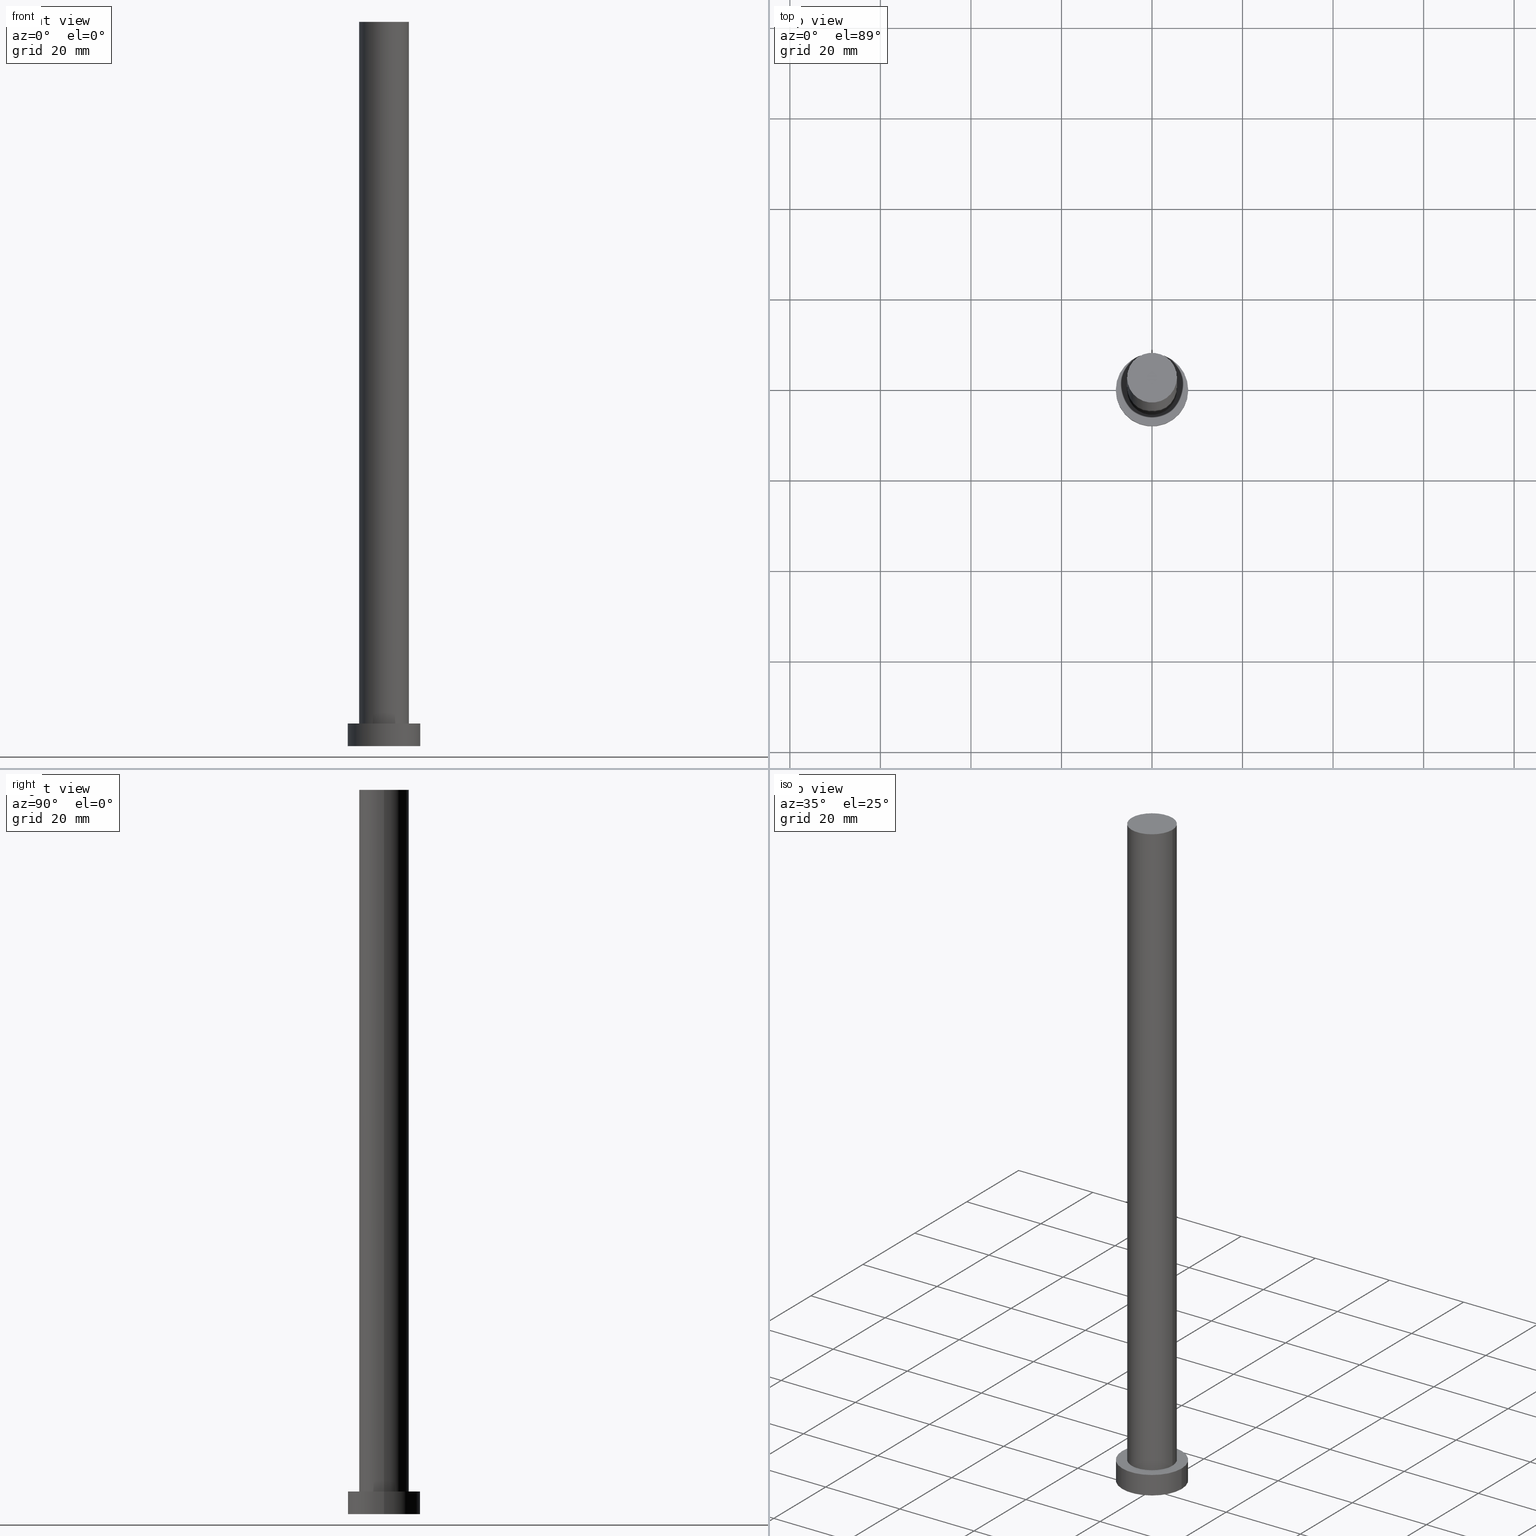
[diagram: canonical four-view strip — front | top / right | iso, engineering-drawing reading convention]
A machine part, canonical four-view strip (front | top / right | iso — engineering-drawing reading convention). The complete STEP part file that produces these views, byte-faithful:
ISO-10303-21;
HEADER;
FILE_DESCRIPTION (( 'STEP AP203' ),
    '1' );
FILE_NAME ('93b0.STEP',
    '2023-02-13T13:11:46',
    ( '' ),
    ( '' ),
    'SwSTEP 2.0',
    'SolidWorks 2019',
    '' );
FILE_SCHEMA (( 'CONFIG_CONTROL_DESIGN' ));
ENDSEC;

DATA;
#1 = VECTOR ( 'NONE', #64, 1000.000000000000000 ) ;
#2 = CARTESIAN_POINT ( 'NONE',  ( 0.000000000000000000, 0.000000000000000000, 160.0000000000000000 ) ) ;
#3 = ADVANCED_FACE ( 'NONE', ( #169 ), #88, .T. ) ;
#4 = DIRECTION ( 'NONE',  ( -0.000000000000000000, -0.000000000000000000, -1.000000000000000000 ) ) ;
#5 = CYLINDRICAL_SURFACE ( 'NONE', #35, 5.500000000000000000 ) ;
#6 = PERSON_AND_ORGANIZATION_ROLE ( 'design_owner' ) ;
#7 = APPROVAL ( #212, 'NEUR�EN�' ) ;
#8 =( NAMED_UNIT ( * ) SI_UNIT ( $, .STERADIAN. ) SOLID_ANGLE_UNIT ( ) );
#9 = UNCERTAINTY_MEASURE_WITH_UNIT (LENGTH_MEASURE( 1.000000000000000082E-05 ), #66, 'distance_accuracy_value', 'NONE');
#10 = APPLICATION_CONTEXT ( 'configuration controlled 3d designs of mechanical parts and assemblies' ) ;
#11 = ORIENTED_EDGE ( 'NONE', *, *, #247, .F. ) ;
#12 = ORIENTED_EDGE ( 'NONE', *, *, #101, .T. ) ;
#13 = ADVANCED_FACE ( 'NONE', ( #50 ), #232, .T. ) ;
#14 = PERSON_AND_ORGANIZATION ( #174, #65 ) ;
#15 = VERTEX_POINT ( 'NONE', #219 ) ;
#16 = AXIS2_PLACEMENT_3D ( 'NONE', #72, #227, #76 ) ;
#17 = EDGE_LOOP ( 'NONE', ( #193, #122, #112, #94 ) ) ;
#18 = APPROVAL ( #69, 'NEUR�EN�' ) ;
#19 = PLANE ( 'NONE',  #204 ) ;
#20 = DIRECTION ( 'NONE',  ( 1.000000000000000000, 0.000000000000000000, 0.000000000000000000 ) ) ;
#21 = DIRECTION ( 'NONE',  ( 1.000000000000000000, 0.000000000000000000, 0.000000000000000000 ) ) ;
#22 = EDGE_CURVE ( 'NONE', #250, #15, #138, .T. ) ;
#23 = LINE ( 'NONE', #116, #147 ) ;
#24 = CARTESIAN_POINT ( 'NONE',  ( 0.000000000000000000, 0.000000000000000000, 0.000000000000000000 ) ) ;
#25 = CC_DESIGN_SECURITY_CLASSIFICATION ( #180, ( #130 ) ) ;
#26 = ADVANCED_FACE ( 'NONE', ( #196 ), #47, .F. ) ;
#27 = DIRECTION ( 'NONE',  ( 1.000000000000000000, 0.000000000000000000, 0.000000000000000000 ) ) ;
#28 = CIRCLE ( 'NONE', #96, 5.500000000000000000 ) ;
#29 = MECHANICAL_CONTEXT ( 'NONE', #107, 'mechanical' ) ;
#30 = ORIENTED_EDGE ( 'NONE', *, *, #22, .F. ) ;
#31 = CALENDAR_DATE ( 2023, 13, 2 ) ;
#32 = VERTEX_POINT ( 'NONE', #129 ) ;
#33 = DATE_TIME_ROLE ( 'classification_date' ) ;
#34 = ORIENTED_EDGE ( 'NONE', *, *, #137, .F. ) ;
#35 = AXIS2_PLACEMENT_3D ( 'NONE', #81, #195, #128 ) ;
#36 = VERTEX_POINT ( 'NONE', #100 ) ;
#37 = PERSON_AND_ORGANIZATION_ROLE ( 'design_supplier' ) ;
#38 = ORIENTED_EDGE ( 'NONE', *, *, #22, .T. ) ;
#39 = APPROVAL_DATE_TIME ( #139, #104 ) ;
#40 = FACE_BOUND ( 'NONE', #167, .T. ) ;
#41 = APPROVAL_PERSON_ORGANIZATION ( #84, #18, #119 ) ;
#42 = DIRECTION ( 'NONE',  ( 0.000000000000000000, 0.000000000000000000, 1.000000000000000000 ) ) ;
#43 = DIRECTION ( 'NONE',  ( 0.000000000000000000, 0.000000000000000000, 1.000000000000000000 ) ) ;
#44 = ADVANCED_FACE ( 'NONE', ( #254 ), #235, .T. ) ;
#45 = PLANE ( 'NONE',  #98 ) ;
#46 = CIRCLE ( 'NONE', #222, 8.000000000000000000 ) ;
#47 = PLANE ( 'NONE',  #178 ) ;
#48 = DIRECTION ( 'NONE',  ( 1.000000000000000000, 0.000000000000000000, 0.000000000000000000 ) ) ;
#49 = APPROVAL_DATE_TIME ( #226, #7 ) ;
#50 = FACE_OUTER_BOUND ( 'NONE', #17, .T. ) ;
#51 = EDGE_CURVE ( 'NONE', #32, #75, #70, .T. ) ;
#52 = ORIENTED_EDGE ( 'NONE', *, *, #236, .T. ) ;
#53 = DATE_AND_TIME ( #213, #136 ) ;
#54 = AXIS2_PLACEMENT_3D ( 'NONE', #24, #216, #20 ) ;
#55 = ORIENTED_EDGE ( 'NONE', *, *, #120, .T. ) ;
#56 = AXIS2_PLACEMENT_3D ( 'NONE', #207, #203, #48 ) ;
#57 = PERSON_AND_ORGANIZATION ( #174, #65 ) ;
#58 = CARTESIAN_POINT ( 'NONE',  ( 0.000000000000000000, 0.000000000000000000, 160.0000000000000000 ) ) ;
#59 = DATE_AND_TIME ( #168, #61 ) ;
#60 = DIRECTION ( 'NONE',  ( 1.000000000000000000, 0.000000000000000000, -0.000000000000000000 ) ) ;
#61 = LOCAL_TIME ( 14, 11, 46.00000000000000000, #92 ) ;
#62 = DIRECTION ( 'NONE',  ( 1.000000000000000000, 0.000000000000000000, 0.000000000000000000 ) ) ;
#63 = DIRECTION ( 'NONE',  ( 0.000000000000000000, 0.000000000000000000, 1.000000000000000000 ) ) ;
#64 = DIRECTION ( 'NONE',  ( -0.000000000000000000, -0.000000000000000000, -1.000000000000000000 ) ) ;
#65 = ORGANIZATION ( 'NEUR�EN�', 'NEUR�EN�', '' ) ;
#66 =( LENGTH_UNIT ( ) NAMED_UNIT ( * ) SI_UNIT ( .MILLI., .METRE. ) );
#67 = EDGE_CURVE ( 'NONE', #188, #97, #106, .T. ) ;
#68 = DIRECTION ( 'NONE',  ( 0.000000000000000000, 0.000000000000000000, 1.000000000000000000 ) ) ;
#69 = APPROVAL_STATUS ( 'not_yet_approved' ) ;
#70 = CIRCLE ( 'NONE', #243, 5.500000000000000000 ) ;
#71 = CARTESIAN_POINT ( 'NONE',  ( -5.500000000000000000, 0.000000000000000000, 160.0000000000000000 ) ) ;
#72 = CARTESIAN_POINT ( 'NONE',  ( 0.000000000000000000, 0.000000000000000000, 5.000000000000000000 ) ) ;
#73 = DESIGN_CONTEXT ( 'detailed design', #10, 'design' ) ;
#74 = APPROVAL_STATUS ( 'not_yet_approved' ) ;
#75 = VERTEX_POINT ( 'NONE', #179 ) ;
#76 = DIRECTION ( 'NONE',  ( -1.000000000000000000, 0.000000000000000000, 0.000000000000000000 ) ) ;
#77 = DIRECTION ( 'NONE',  ( 0.000000000000000000, 0.000000000000000000, 1.000000000000000000 ) ) ;
#78 = DIRECTION ( 'NONE',  ( 0.000000000000000000, 0.000000000000000000, 1.000000000000000000 ) ) ;
#79 = DIRECTION ( 'NONE',  ( -0.000000000000000000, -0.000000000000000000, -1.000000000000000000 ) ) ;
#80 = DIRECTION ( 'NONE',  ( 0.000000000000000000, 0.000000000000000000, 1.000000000000000000 ) ) ;
#81 = CARTESIAN_POINT ( 'NONE',  ( 0.000000000000000000, 0.000000000000000000, 160.0000000000000000 ) ) ;
#82 = EDGE_CURVE ( 'NONE', #36, #140, #199, .T. ) ;
#83 = AXIS2_PLACEMENT_3D ( 'NONE', #164, #68, #27 ) ;
#84 = PERSON_AND_ORGANIZATION ( #174, #65 ) ;
#85 = LINE ( 'NONE', #161, #102 ) ;
#86 = APPLICATION_PROTOCOL_DEFINITION ( 'international standard', 'config_control_design', 1994, #10 ) ;
#87 = CIRCLE ( 'NONE', #83, 5.500000000000000000 ) ;
#88 = CYLINDRICAL_SURFACE ( 'NONE', #16, 8.000000000000000000 ) ;
#89 = CC_DESIGN_DATE_AND_TIME_ASSIGNMENT ( #59, #33, ( #180 ) ) ;
#90 = EDGE_LOOP ( 'NONE', ( #93, #108, #121, #248 ) ) ;
#91 = CC_DESIGN_APPROVAL ( #18, ( #184 ) ) ;
#92 = COORDINATED_UNIVERSAL_TIME_OFFSET ( 1, 0, .AHEAD. ) ;
#93 = ORIENTED_EDGE ( 'NONE', *, *, #114, .F. ) ;
#94 = ORIENTED_EDGE ( 'NONE', *, *, #247, .T. ) ;
#95 = SECURITY_CLASSIFICATION_LEVEL ( 'unclassified' ) ;
#96 = AXIS2_PLACEMENT_3D ( 'NONE', #2, #200, #21 ) ;
#97 = VERTEX_POINT ( 'NONE', #156 ) ;
#98 = AXIS2_PLACEMENT_3D ( 'NONE', #134, #80, #60 ) ;
#99 = DIRECTION ( 'NONE',  ( -1.000000000000000000, 0.000000000000000000, 0.000000000000000000 ) ) ;
#100 = CARTESIAN_POINT ( 'NONE',  ( 5.500000000000000000, 6.735557395310442023E-16, 5.000000000000000000 ) ) ;
#101 = EDGE_CURVE ( 'NONE', #97, #188, #145, .T. ) ;
#102 = VECTOR ( 'NONE', #205, 1000.000000000000000 ) ;
#103 = CARTESIAN_POINT ( 'NONE',  ( 0.000000000000000000, 0.000000000000000000, 5.000000000000000000 ) ) ;
#104 = APPROVAL ( #74, 'NEUR�EN�' ) ;
#105 = CARTESIAN_POINT ( 'NONE',  ( 0.000000000000000000, 0.000000000000000000, 160.0000000000000000 ) ) ;
#106 = CIRCLE ( 'NONE', #124, 8.000000000000000000 ) ;
#107 = APPLICATION_CONTEXT ( 'configuration controlled 3d designs of mechanical parts and assemblies' ) ;
#108 = ORIENTED_EDGE ( 'NONE', *, *, #172, .T. ) ;
#109 = DATE_AND_TIME ( #228, #208 ) ;
#110 = CC_DESIGN_PERSON_AND_ORGANIZATION_ASSIGNMENT ( #149, #173, ( #184 ) ) ;
#111 = PERSON_AND_ORGANIZATION_ROLE ( 'classification_officer' ) ;
#112 = ORIENTED_EDGE ( 'NONE', *, *, #223, .T. ) ;
#113 = FACE_OUTER_BOUND ( 'NONE', #144, .T. ) ;
#114 = EDGE_CURVE ( 'NONE', #75, #32, #28, .T. ) ;
#115 = CARTESIAN_POINT ( 'NONE',  ( 0.000000000000000000, 0.000000000000000000, 5.000000000000000000 ) ) ;
#116 = CARTESIAN_POINT ( 'NONE',  ( -8.000000000000000000, 0.000000000000000000, 5.000000000000000000 ) ) ;
#117 = CARTESIAN_POINT ( 'NONE',  ( 0.000000000000000000, 0.000000000000000000, 0.000000000000000000 ) ) ;
#118 = VECTOR ( 'NONE', #160, 1000.000000000000000 ) ;
#119 = APPROVAL_ROLE ( '' ) ;
#120 = EDGE_CURVE ( 'NONE', #97, #15, #23, .T. ) ;
#121 = ORIENTED_EDGE ( 'NONE', *, *, #82, .T. ) ;
#122 = ORIENTED_EDGE ( 'NONE', *, *, #51, .F. ) ;
#123 = MANIFOLD_SOLID_BREP ( 'P�idat vysunut�m3', #255 ) ;
#124 = AXIS2_PLACEMENT_3D ( 'NONE', #115, #78, #152 ) ;
#125 = CALENDAR_DATE ( 2023, 13, 2 ) ;
#126 = EDGE_LOOP ( 'NONE', ( #209, #210 ) ) ;
#127 = ORIENTED_EDGE ( 'NONE', *, *, #120, .F. ) ;
#128 = DIRECTION ( 'NONE',  ( -1.000000000000000000, 0.000000000000000000, 0.000000000000000000 ) ) ;
#129 = CARTESIAN_POINT ( 'NONE',  ( -5.500000000000000000, 0.000000000000000000, 160.0000000000000000 ) ) ;
#130 = PRODUCT_DEFINITION_FORMATION_WITH_SPECIFIED_SOURCE ( 'LIBOVOLN�', '', #225, .NOT_KNOWN. ) ;
#131 = DIRECTION ( 'NONE',  ( -1.000000000000000000, 0.000000000000000000, 0.000000000000000000 ) ) ;
#132 = FACE_OUTER_BOUND ( 'NONE', #126, .T. ) ;
#133 = AXIS2_PLACEMENT_3D ( 'NONE', #238, #218, #201 ) ;
#134 = CARTESIAN_POINT ( 'NONE',  ( 0.000000000000000000, 0.000000000000000000, 160.0000000000000000 ) ) ;
#135 = CC_DESIGN_PERSON_AND_ORGANIZATION_ASSIGNMENT ( #57, #245, ( #130 ) ) ;
#136 = LOCAL_TIME ( 14, 11, 46.00000000000000000, #231 ) ;
#137 = EDGE_CURVE ( 'NONE', #15, #250, #46, .T. ) ;
#138 = CIRCLE ( 'NONE', #54, 8.000000000000000000 ) ;
#139 = DATE_AND_TIME ( #125, #244 ) ;
#140 = VERTEX_POINT ( 'NONE', #241 ) ;
#141 = PERSON_AND_ORGANIZATION ( #174, #65 ) ;
#142 = EDGE_LOOP ( 'NONE', ( #234, #52, #38, #127 ) ) ;
#143 = APPROVAL_ROLE ( '' ) ;
#144 = EDGE_LOOP ( 'NONE', ( #12, #214 ) ) ;
#145 = CIRCLE ( 'NONE', #133, 8.000000000000000000 ) ;
#146 = SHAPE_DEFINITION_REPRESENTATION ( #202, #162 ) ;
#147 = VECTOR ( 'NONE', #79, 1000.000000000000000 ) ;
#148 = ORIENTED_EDGE ( 'NONE', *, *, #82, .F. ) ;
#149 = PERSON_AND_ORGANIZATION ( #174, #65 ) ;
#150 = ORIENTED_EDGE ( 'NONE', *, *, #236, .F. ) ;
#151 = DIRECTION ( 'NONE',  ( 1.000000000000000000, 0.000000000000000000, -0.000000000000000000 ) ) ;
#152 = DIRECTION ( 'NONE',  ( 1.000000000000000000, 0.000000000000000000, 0.000000000000000000 ) ) ;
#153 = APPROVAL_PERSON_ORGANIZATION ( #141, #104, #143 ) ;
#154 = LOCAL_TIME ( 14, 11, 46.00000000000000000, #246 ) ;
#155 = ADVANCED_FACE ( 'NONE', ( #132 ), #45, .T. ) ;
#156 = CARTESIAN_POINT ( 'NONE',  ( -8.000000000000000000, 0.000000000000000000, 5.000000000000000000 ) ) ;
#157 = CARTESIAN_POINT ( 'NONE',  ( 5.500000000000000000, 6.735557395310442023E-16, 160.0000000000000000 ) ) ;
#158 = AXIS2_PLACEMENT_3D ( 'NONE', #58, #159, #99 ) ;
#159 = DIRECTION ( 'NONE',  ( -0.000000000000000000, -0.000000000000000000, -1.000000000000000000 ) ) ;
#160 = DIRECTION ( 'NONE',  ( -0.000000000000000000, -0.000000000000000000, -1.000000000000000000 ) ) ;
#161 = CARTESIAN_POINT ( 'NONE',  ( 8.000000000000000000, 9.797174393178825657E-16, 5.000000000000000000 ) ) ;
#162 = ADVANCED_BREP_SHAPE_REPRESENTATION ( '93b0', ( #123, #56 ), #194 ) ;
#163 = CC_DESIGN_PERSON_AND_ORGANIZATION_ASSIGNMENT ( #183, #6, ( #225 ) ) ;
#164 = CARTESIAN_POINT ( 'NONE',  ( 0.000000000000000000, 0.000000000000000000, 5.000000000000000000 ) ) ;
#165 = EDGE_LOOP ( 'NONE', ( #34, #30 ) ) ;
#166 = CC_DESIGN_APPROVAL ( #104, ( #130 ) ) ;
#167 = EDGE_LOOP ( 'NONE', ( #11, #148 ) ) ;
#168 = CALENDAR_DATE ( 2023, 13, 2 ) ;
#169 = FACE_OUTER_BOUND ( 'NONE', #170, .T. ) ;
#170 = EDGE_LOOP ( 'NONE', ( #150, #229, #55, #211 ) ) ;
#171 = COORDINATED_UNIVERSAL_TIME_OFFSET ( 1, 0, .AHEAD. ) ;
#172 = EDGE_CURVE ( 'NONE', #75, #36, #217, .T. ) ;
#173 = PERSON_AND_ORGANIZATION_ROLE ( 'creator' ) ;
#174 = PERSON ( 'NEUR�EN�', 'NEUR�EN�', 'NEUR�EN�', ('NEUR�EN�'), ('NEUR�EN�'), ('NEUR�EN�') ) ;
#175 = DIRECTION ( 'NONE',  ( 1.000000000000000000, 0.000000000000000000, 0.000000000000000000 ) ) ;
#176 = CARTESIAN_POINT ( 'NONE',  ( 0.000000000000000000, 0.000000000000000000, 5.000000000000000000 ) ) ;
#177 = CC_DESIGN_PERSON_AND_ORGANIZATION_ASSIGNMENT ( #215, #37, ( #130 ) ) ;
#178 = AXIS2_PLACEMENT_3D ( 'NONE', #117, #239, #198 ) ;
#179 = CARTESIAN_POINT ( 'NONE',  ( 5.500000000000000000, 6.735557395310442023E-16, 160.0000000000000000 ) ) ;
#180 = SECURITY_CLASSIFICATION ( '', '', #95 ) ;
#181 = CARTESIAN_POINT ( 'NONE',  ( 0.000000000000000000, 0.000000000000000000, 0.000000000000000000 ) ) ;
#182 = FACE_OUTER_BOUND ( 'NONE', #90, .T. ) ;
#183 = PERSON_AND_ORGANIZATION ( #174, #65 ) ;
#184 = PRODUCT_DEFINITION ( 'NEZN�M�', '', #130, #73 ) ;
#185 = CC_DESIGN_APPROVAL ( #7, ( #180 ) ) ;
#186 = CARTESIAN_POINT ( 'NONE',  ( 8.000000000000000000, 9.797174393178825657E-16, 0.000000000000000000 ) ) ;
#187 = LINE ( 'NONE', #71, #118 ) ;
#188 = VERTEX_POINT ( 'NONE', #221 ) ;
#189 = ADVANCED_FACE ( 'NONE', ( #182 ), #5, .T. ) ;
#190 = APPROVAL_DATE_TIME ( #109, #18 ) ;
#191 = PERSON_AND_ORGANIZATION ( #174, #65 ) ;
#192 = ADVANCED_FACE ( 'NONE', ( #40, #113 ), #19, .T. ) ;
#193 = ORIENTED_EDGE ( 'NONE', *, *, #172, .F. ) ;
#194 =( GEOMETRIC_REPRESENTATION_CONTEXT ( 3 ) GLOBAL_UNCERTAINTY_ASSIGNED_CONTEXT ( ( #9 ) ) GLOBAL_UNIT_ASSIGNED_CONTEXT ( ( #66, #206, #8 ) ) REPRESENTATION_CONTEXT ( 'NONE', 'WORKASPACE' ) );
#195 = DIRECTION ( 'NONE',  ( -0.000000000000000000, -0.000000000000000000, -1.000000000000000000 ) ) ;
#196 = FACE_OUTER_BOUND ( 'NONE', #165, .T. ) ;
#197 = CC_DESIGN_DATE_AND_TIME_ASSIGNMENT ( #53, #251, ( #184 ) ) ;
#198 = DIRECTION ( 'NONE',  ( 1.000000000000000000, 0.000000000000000000, -0.000000000000000000 ) ) ;
#199 = CIRCLE ( 'NONE', #230, 5.500000000000000000 ) ;
#200 = DIRECTION ( 'NONE',  ( 0.000000000000000000, 0.000000000000000000, 1.000000000000000000 ) ) ;
#201 = DIRECTION ( 'NONE',  ( 1.000000000000000000, 0.000000000000000000, 0.000000000000000000 ) ) ;
#202 = PRODUCT_DEFINITION_SHAPE ( 'NONE', 'NONE',  #184 ) ;
#203 = DIRECTION ( 'NONE',  ( 0.000000000000000000, 0.000000000000000000, 1.000000000000000000 ) ) ;
#204 = AXIS2_PLACEMENT_3D ( 'NONE', #252, #77, #151 ) ;
#205 = DIRECTION ( 'NONE',  ( -0.000000000000000000, -0.000000000000000000, -1.000000000000000000 ) ) ;
#206 =( NAMED_UNIT ( * ) PLANE_ANGLE_UNIT ( ) SI_UNIT ( $, .RADIAN. ) );
#207 = CARTESIAN_POINT ( 'NONE',  ( 0.000000000000000000, 0.000000000000000000, 0.000000000000000000 ) ) ;
#208 = LOCAL_TIME ( 14, 11, 46.00000000000000000, #233 ) ;
#209 = ORIENTED_EDGE ( 'NONE', *, *, #51, .T. ) ;
#210 = ORIENTED_EDGE ( 'NONE', *, *, #114, .T. ) ;
#211 = ORIENTED_EDGE ( 'NONE', *, *, #137, .T. ) ;
#212 = APPROVAL_STATUS ( 'not_yet_approved' ) ;
#213 = CALENDAR_DATE ( 2023, 13, 2 ) ;
#214 = ORIENTED_EDGE ( 'NONE', *, *, #67, .T. ) ;
#215 = PERSON_AND_ORGANIZATION ( #174, #65 ) ;
#216 = DIRECTION ( 'NONE',  ( 0.000000000000000000, 0.000000000000000000, 1.000000000000000000 ) ) ;
#217 = LINE ( 'NONE', #157, #1 ) ;
#218 = DIRECTION ( 'NONE',  ( 0.000000000000000000, 0.000000000000000000, 1.000000000000000000 ) ) ;
#219 = CARTESIAN_POINT ( 'NONE',  ( -8.000000000000000000, 0.000000000000000000, 0.000000000000000000 ) ) ;
#220 = AXIS2_PLACEMENT_3D ( 'NONE', #103, #4, #131 ) ;
#221 = CARTESIAN_POINT ( 'NONE',  ( 8.000000000000000000, 9.797174393178825657E-16, 5.000000000000000000 ) ) ;
#222 = AXIS2_PLACEMENT_3D ( 'NONE', #181, #63, #240 ) ;
#223 = EDGE_CURVE ( 'NONE', #32, #140, #187, .T. ) ;
#224 = PRODUCT_RELATED_PRODUCT_CATEGORY ( 'detail', '', ( #225 ) ) ;
#225 = PRODUCT ( '93b0', '93b0', '', ( #29 ) ) ;
#226 = DATE_AND_TIME ( #31, #154 ) ;
#227 = DIRECTION ( 'NONE',  ( -0.000000000000000000, -0.000000000000000000, -1.000000000000000000 ) ) ;
#228 = CALENDAR_DATE ( 2023, 13, 2 ) ;
#229 = ORIENTED_EDGE ( 'NONE', *, *, #101, .F. ) ;
#230 = AXIS2_PLACEMENT_3D ( 'NONE', #176, #43, #62 ) ;
#231 = COORDINATED_UNIVERSAL_TIME_OFFSET ( 1, 0, .AHEAD. ) ;
#232 = CYLINDRICAL_SURFACE ( 'NONE', #158, 5.500000000000000000 ) ;
#233 = COORDINATED_UNIVERSAL_TIME_OFFSET ( 1, 0, .AHEAD. ) ;
#234 = ORIENTED_EDGE ( 'NONE', *, *, #67, .F. ) ;
#235 = CYLINDRICAL_SURFACE ( 'NONE', #220, 8.000000000000000000 ) ;
#236 = EDGE_CURVE ( 'NONE', #188, #250, #85, .T. ) ;
#237 = APPROVAL_PERSON_ORGANIZATION ( #191, #7, #249 ) ;
#238 = CARTESIAN_POINT ( 'NONE',  ( 0.000000000000000000, 0.000000000000000000, 5.000000000000000000 ) ) ;
#239 = DIRECTION ( 'NONE',  ( 0.000000000000000000, 0.000000000000000000, 1.000000000000000000 ) ) ;
#240 = DIRECTION ( 'NONE',  ( 1.000000000000000000, 0.000000000000000000, 0.000000000000000000 ) ) ;
#241 = CARTESIAN_POINT ( 'NONE',  ( -5.500000000000000000, 0.000000000000000000, 5.000000000000000000 ) ) ;
#242 = APPLICATION_PROTOCOL_DEFINITION ( 'international standard', 'config_control_design', 1994, #107 ) ;
#243 = AXIS2_PLACEMENT_3D ( 'NONE', #105, #42, #175 ) ;
#244 = LOCAL_TIME ( 14, 11, 46.00000000000000000, #171 ) ;
#245 = PERSON_AND_ORGANIZATION_ROLE ( 'creator' ) ;
#246 = COORDINATED_UNIVERSAL_TIME_OFFSET ( 1, 0, .AHEAD. ) ;
#247 = EDGE_CURVE ( 'NONE', #140, #36, #87, .T. ) ;
#248 = ORIENTED_EDGE ( 'NONE', *, *, #223, .F. ) ;
#249 = APPROVAL_ROLE ( '' ) ;
#250 = VERTEX_POINT ( 'NONE', #186 ) ;
#251 = DATE_TIME_ROLE ( 'creation_date' ) ;
#252 = CARTESIAN_POINT ( 'NONE',  ( 0.000000000000000000, 0.000000000000000000, 5.000000000000000000 ) ) ;
#253 = CC_DESIGN_PERSON_AND_ORGANIZATION_ASSIGNMENT ( #14, #111, ( #180 ) ) ;
#254 = FACE_OUTER_BOUND ( 'NONE', #142, .T. ) ;
#255 = CLOSED_SHELL ( 'NONE', ( #189, #44, #3, #192, #26, #13, #155 ) ) ;
ENDSEC;
END-ISO-10303-21;
